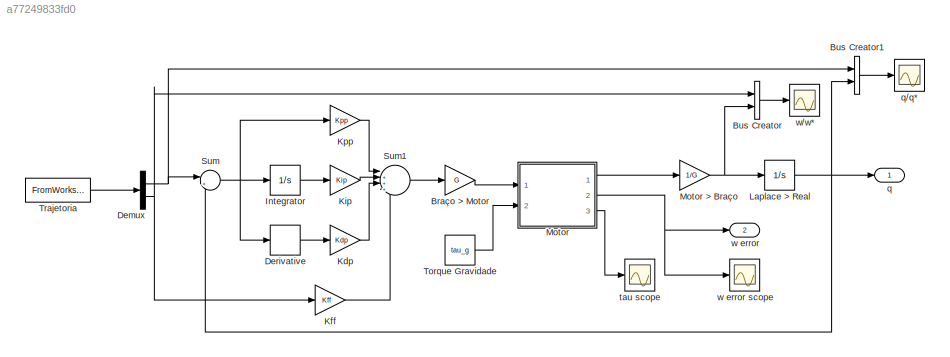
MODEL slx_a77249833fd0
KIND model
CONFIG AbsTol = auto
CONFIG EnableMultiTasking = off
CONFIG FixedStep = auto
CONFIG MaxStep = auto
CONFIG MinStep = auto
CONFIG RelTol = 1e-3
CONFIG SampleTimeConstraint = Unconstrained
CONFIG SolverName = VariableStepAuto
CONFIG StartTime = 0.0
CONFIG StopTime = 2.5
BLOCK [Gain] Braço > Motor
  Gain = G
BLOCK [BusCreator] Bus Creator
  DisplayOption = bar
  InheritFromInputs = on
  Inputs = 2
  Ports = [2, 1]
BLOCK [BusCreator] Bus Creator1
  DisplayOption = bar
  InheritFromInputs = on
  Inputs = 2
  Ports = [2, 1]
BLOCK [Demux] Demux
  Outputs = 2
  Ports = [1, 2]
BLOCK [Derivative] Derivative
BLOCK [Integrator] Integrator
  Ports = [1, 1]
BLOCK [Gain] Kdp
  Gain = Kdp
BLOCK [Gain] Kff
  Gain = Kff
BLOCK [Gain] Kip
  Gain = Kip
BLOCK [Gain] Kpp
  Gain = Kpp
BLOCK [Integrator] Laplace > Real
  Ports = [1, 1]
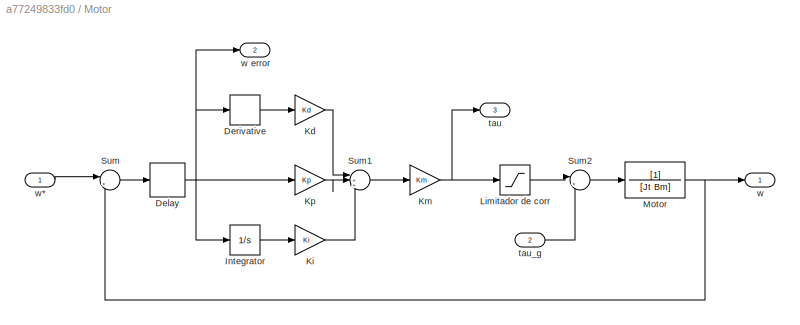
BLOCK [SubSystem] Motor
  Ports = [2, 3]
  RequestExecContextInheritance = off
BLOCK [Gain] Motor > Braço
  Gain = 1/G
BLOCK [Delay] Motor/Delay
  DelayLength = 1
  InitialCondition = 0
  InputPortMap = u0
  Ports = [1, 1]
  SampleTime = Ts
BLOCK [Derivative] Motor/Derivative
BLOCK [Integrator] Motor/Integrator
  Ports = [1, 1]
BLOCK [Gain] Motor/Kd
  Gain = Kd
BLOCK [Gain] Motor/Ki
  Gain = Ki
BLOCK [Gain] Motor/Km
  Gain = Km
BLOCK [Gain] Motor/Kp
  Gain = Kp
BLOCK [Saturate] Motor/Limitador de corr
  LowerLimit = -Tmax
  UpperLimit = Tmax
BLOCK [TransferFcn] Motor/Motor
  Denominator = [Jt  Bm]
BLOCK [Sum] Motor/Sum
  Inputs = |+-
  Ports = [2, 1]
BLOCK [Sum] Motor/Sum1
  Inputs = |+++
  Ports = [3, 1]
BLOCK [Sum] Motor/Sum2
  Inputs = |++
  Ports = [2, 1]
BLOCK [Outport] Motor/tau
  Port = 3
BLOCK [Inport] Motor/tau_g
  Port = 2
BLOCK [Outport] Motor/w
BLOCK [Outport] Motor/w error
  Port = 2
BLOCK [Inport] Motor/w*
BLOCK [Sum] Sum
  Inputs = |+-
  Ports = [2, 1]
BLOCK [Sum] Sum1
  Inputs = |++++
  Ports = [4, 1]
BLOCK [Constant] Torque Gravidade
  Value = tau_g
BLOCK [FromWorkspace] Trajetoria
  VariableName = Trajetoria
BLOCK [Outport] q
BLOCK [Scope] q//q*
  Floating = off
  NumInputPorts = 1
  Ports = [1]
  ScopeSpecificationString = Simulink.scopes.TimeScopeBlockCfg('CurrentConfiguration', extmgr.ConfigurationSet(extmgr.Configuration('Core','General UI',true),extmgr.Configuration('Core','Source UI',true),extmgr.Configuration('Sources','WiredSimulink',true,'DataLoggingVariableName','ScopeData2'),extmgr.Configuration('Visuals','Time Domain',true,'SerializedDisplays',{struct('MinYLimReal','-0.28987','MaxYLimReal','2.60882','YLab...<+1483ch>
BLOCK [Scope] tau scope
  Floating = off
  NumInputPorts = 1
  Ports = [1]
  ScopeSpecificationString = Simulink.scopes.TimeScopeBlockCfg('CurrentConfiguration', extmgr.ConfigurationSet(extmgr.Configuration('Core','General UI',true),extmgr.Configuration('Core','Source UI',true),extmgr.Configuration('Sources','WiredSimulink',true,'DataLoggingVariableName','ScopeData2'),extmgr.Configuration('Visuals','Time Domain',true,'SerializedDisplays',{struct('MinYLimReal','-0.13404','MaxYLimReal','0.01489','YLab...<+1437ch>
BLOCK [Outport] w error
  Port = 2
BLOCK [Scope] w error scope
  Floating = off
  NumInputPorts = 1
  Ports = [1]
  ScopeSpecificationString = Simulink.scopes.TimeScopeBlockCfg('CurrentConfiguration', extmgr.ConfigurationSet(extmgr.Configuration('Core','General UI',true),extmgr.Configuration('Core','Source UI',true),extmgr.Configuration('Sources','WiredSimulink',true,'DataLoggingVariableName','ScopeData1'),extmgr.Configuration('Visuals','Time Domain',true,'SerializedDisplays',{struct('MinYLimReal','-40.30122','MaxYLimReal','32.52233','YL...<+1443ch>
BLOCK [Scope] w//w*
  Floating = off
  NumInputPorts = 1
  Ports = [1]
  ScopeSpecificationString = Simulink.scopes.TimeScopeBlockCfg('CurrentConfiguration', extmgr.ConfigurationSet(extmgr.Configuration('Core','General UI',true),extmgr.Configuration('Core','Source UI',true),extmgr.Configuration('Sources','WiredSimulink',true),extmgr.Configuration('Visuals','Time Domain',true,'SerializedDisplays',{struct('MinYLimReal','-0.19176','MaxYLimReal','1.7258','YLabelReal','','MinYLimMag','0.00000','MaxYL...<+1410ch>
LINE Braço > Motor:1 -> Motor:1
LINE Bus Creator1:1 -> q//q*:1
LINE Bus Creator:1 -> w//w*:1
NET Demux:1 -> Bus Creator1:1, Sum:1
NET Demux:2 -> Bus Creator:1, Kff:1
LINE Derivative:1 -> Kdp:1
LINE Integrator:1 -> Kip:1
LINE Kdp:1 -> Sum1:3
LINE Kff:1 -> Sum1:4
LINE Kip:1 -> Sum1:2
LINE Kpp:1 -> Sum1:1
NET Laplace > Real:1 -> Bus Creator1:2, Sum:2, q:1
NET Motor > Braço:1 -> Bus Creator:2, Laplace > Real:1
NET Motor/Delay:1 -> Motor/Derivative:1, Motor/Integrator:1, Motor/Kp:1, Motor/w error:1
LINE Motor/Derivative:1 -> Motor/Kd:1
LINE Motor/Integrator:1 -> Motor/Ki:1
LINE Motor/Kd:1 -> Motor/Sum1:1
LINE Motor/Ki:1 -> Motor/Sum1:3
NET Motor/Km:1 -> Motor/Limitador de corr:1, Motor/tau:1
LINE Motor/Kp:1 -> Motor/Sum1:2
LINE Motor/Limitador de corr:1 -> Motor/Sum2:1
NET Motor/Motor:1 -> Motor/Sum:2, Motor/w:1
LINE Motor/Sum1:1 -> Motor/Km:1
LINE Motor/Sum2:1 -> Motor/Motor:1
LINE Motor/Sum:1 -> Motor/Delay:1
LINE Motor/tau_g:1 -> Motor/Sum2:2
LINE Motor/w*:1 -> Motor/Sum:1
LINE Motor:1 -> Motor > Braço:1
NET Motor:2 -> w error scope:1, w error:1
LINE Motor:3 -> tau scope:1
LINE Sum1:1 -> Braço > Motor:1
NET Sum:1 -> Derivative:1, Integrator:1, Kpp:1
LINE Torque Gravidade:1 -> Motor:2
LINE Trajetoria:1 -> Demux:1
note: NET lines group one-source signal fan-out (src -> all destinations, sorted); 1:1 wires keep LINE
